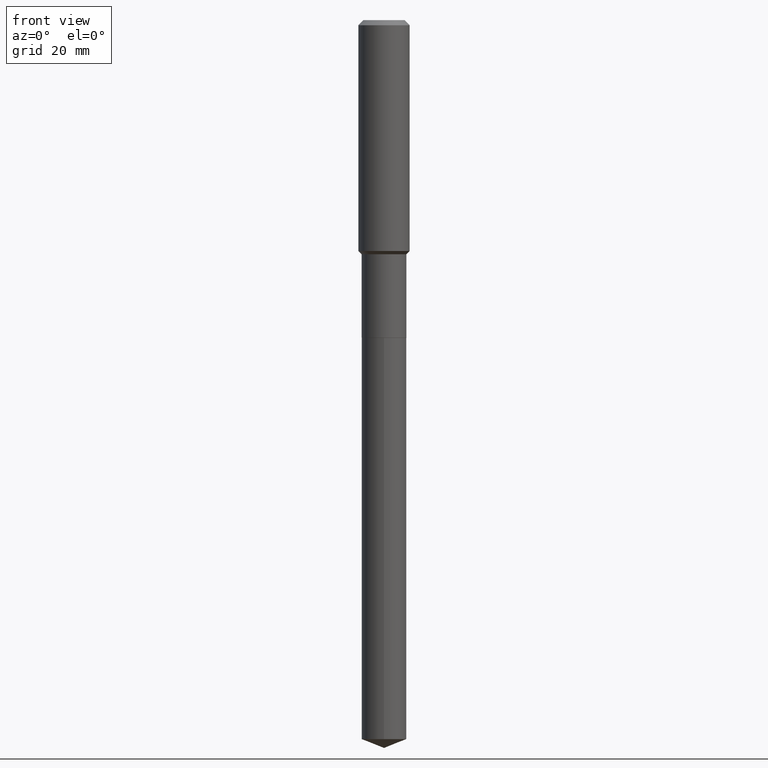
[diagram: clean part render]
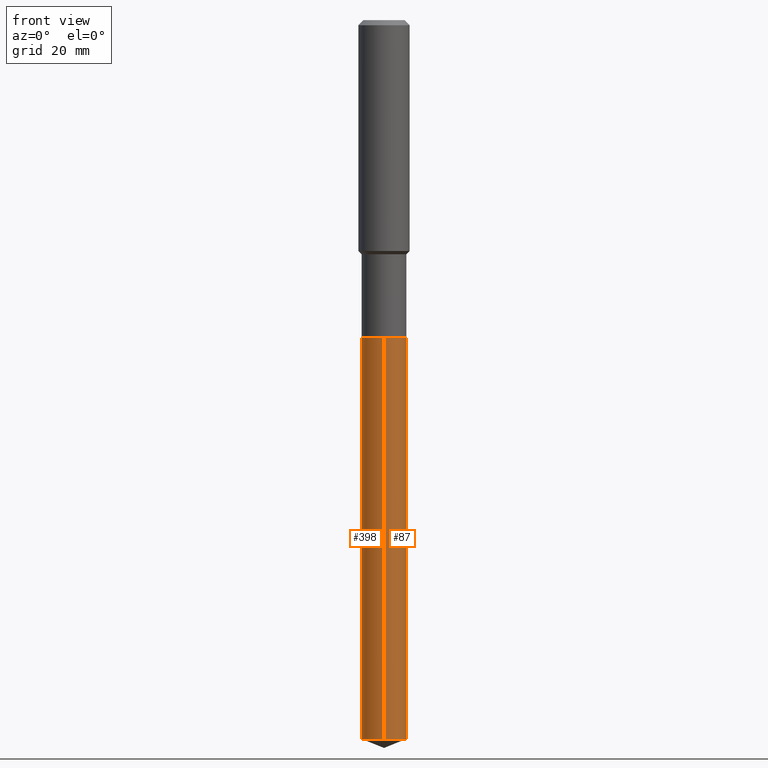
[diagram: same view with one multi-face feature highlighted, each face labeled with its STEP entity id]
A machine part, front view. The highlighted faces form ONE feature: a constant-radius fillet chain: 2 tangent blend faces with common blend radius 4.3663 mm. The faces share edges in the B-rep.
Their STEP definitions:
[1] entity #87 (Cylinder):
#7 = AXIS2_PLACEMENT_3D ( 'NONE', #361, #391, #206 ) ;
#12 = VERTEX_POINT ( 'NONE', #116 ) ;
#21 = LINE ( 'NONE', #457, #188 ) ;
#23 = DIRECTION ( 'NONE',  ( -2.445456552962842404E-29, 3.491498886154880768E-15, 1.000000000000000000 ) ) ;
#28 = CIRCLE ( 'NONE', #338, 0.1718999999999999695 ) ;
#36 = VERTEX_POINT ( 'NONE', #170 ) ;
#45 = CARTESIAN_POINT ( 'NONE',  ( 1.221422962771747687E-15, 0.1718999999999807626, -5.522786789241792782 ) ) ;
#87 = ADVANCED_FACE ( 'NONE', ( #282 ), #392, .T. ) ;
#99 = AXIS2_PLACEMENT_3D ( 'NONE', #363, #23, #468 ) ;
#103 = CARTESIAN_POINT ( 'NONE',  ( -1.200371284294134346E-15, -0.1719000000000193429, -5.522786789241790117 ) ) ;
#113 = EDGE_CURVE ( 'NONE', #187, #12, #21, .T. ) ;
#116 = CARTESIAN_POINT ( 'NONE',  ( 1.221422962771747292E-15, 0.1718999999999914208, -2.440899999999999626 ) ) ;
#123 = DIRECTION ( 'NONE',  ( -6.982962677686266711E-15, -1.000000000000000000, 3.178415350394722068E-15 ) ) ;
#129 = DIRECTION ( 'NONE',  ( -2.445456552962842404E-29, 3.491498886154880374E-15, 1.000000000000000000 ) ) ;
#138 = CARTESIAN_POINT ( 'NONE',  ( 5.969144809017297917E-29, -8.522356799982231388E-15, -2.440899999999999181 ) ) ;
#144 = DIRECTION ( 'NONE',  ( -2.445456552962842404E-29, 3.491498886154880374E-15, 1.000000000000000000 ) ) ;
#147 = EDGE_CURVE ( 'NONE', #36, #12, #28, .T. ) ;
#170 = CARTESIAN_POINT ( 'NONE',  ( -1.200371284294209288E-15, -0.1719000000000085182, -2.440899999999998737 ) ) ;
#179 = EDGE_CURVE ( 'NONE', #448, #187, #313, .T. ) ;
#182 = CARTESIAN_POINT ( 'NONE',  ( -1.200371284294209288E-15, -0.1719000000000085182, -2.440899999999998737 ) ) ;
#183 = EDGE_LOOP ( 'NONE', ( #344, #408, #255, #234 ) ) ;
#187 = VERTEX_POINT ( 'NONE', #45 ) ;
#188 = VECTOR ( 'NONE', #129, 39.37007874015748143 ) ;
#206 = DIRECTION ( 'NONE',  ( -6.982962677686266711E-15, -1.000000000000000000, 3.178415350394722068E-15 ) ) ;
#218 = LINE ( 'NONE', #182, #265 ) ;
#234 = ORIENTED_EDGE ( 'NONE', *, *, #440, .F. ) ;
#255 = ORIENTED_EDGE ( 'NONE', *, *, #147, .F. ) ;
#265 = VECTOR ( 'NONE', #144, 39.37007874015748143 ) ;
#282 = FACE_OUTER_BOUND ( 'NONE', #183, .T. ) ;
#313 = CIRCLE ( 'NONE', #99, 0.1718999999999999695 ) ;
#315 = DIRECTION ( 'NONE',  ( -2.445456552962842404E-29, 3.491498886154880768E-15, 1.000000000000000000 ) ) ;
#338 = AXIS2_PLACEMENT_3D ( 'NONE', #138, #315, #123 ) ;
#344 = ORIENTED_EDGE ( 'NONE', *, *, #179, .T. ) ;
#361 = CARTESIAN_POINT ( 'NONE',  ( 5.969144809017297917E-29, -8.522356799982231388E-15, -2.440899999999999181 ) ) ;
#363 = CARTESIAN_POINT ( 'NONE',  ( 1.350576505325825204E-28, -1.928276109187539136E-14, -5.522786789241791006 ) ) ;
#391 = DIRECTION ( 'NONE',  ( -2.445456552962842404E-29, 3.491498886154880768E-15, 1.000000000000000000 ) ) ;
#392 = CYLINDRICAL_SURFACE ( 'NONE', #7, 0.1718999999999999695 ) ;
#408 = ORIENTED_EDGE ( 'NONE', *, *, #113, .T. ) ;
#440 = EDGE_CURVE ( 'NONE', #448, #36, #218, .T. ) ;
#448 = VERTEX_POINT ( 'NONE', #103 ) ;
#457 = CARTESIAN_POINT ( 'NONE',  ( 1.221422962771671562E-15, 0.1718999999999914485, -2.440899999999999626 ) ) ;
#468 = DIRECTION ( 'NONE',  ( -6.982962677686266711E-15, -1.000000000000000000, 6.356830700789444137E-15 ) ) ;
[2] entity #398 (Cylinder):
#12 = VERTEX_POINT ( 'NONE', #116 ) ;
#13 = EDGE_CURVE ( 'NONE', #12, #36, #321, .T. ) ;
#21 = LINE ( 'NONE', #457, #188 ) ;
#30 = ORIENTED_EDGE ( 'NONE', *, *, #440, .T. ) ;
#34 = ORIENTED_EDGE ( 'NONE', *, *, #113, .F. ) ;
#36 = VERTEX_POINT ( 'NONE', #170 ) ;
#39 = DIRECTION ( 'NONE',  ( -6.982962677686266711E-15, -1.000000000000000000, 3.178415350394722068E-15 ) ) ;
#45 = CARTESIAN_POINT ( 'NONE',  ( 1.221422962771747687E-15, 0.1718999999999807626, -5.522786789241792782 ) ) ;
#49 = EDGE_CURVE ( 'NONE', #187, #448, #305, .T. ) ;
#79 = FACE_OUTER_BOUND ( 'NONE', #270, .T. ) ;
#103 = CARTESIAN_POINT ( 'NONE',  ( -1.200371284294134346E-15, -0.1719000000000193429, -5.522786789241790117 ) ) ;
#113 = EDGE_CURVE ( 'NONE', #187, #12, #21, .T. ) ;
#116 = CARTESIAN_POINT ( 'NONE',  ( 1.221422962771747292E-15, 0.1718999999999914208, -2.440899999999999626 ) ) ;
#129 = DIRECTION ( 'NONE',  ( -2.445456552962842404E-29, 3.491498886154880374E-15, 1.000000000000000000 ) ) ;
#144 = DIRECTION ( 'NONE',  ( -2.445456552962842404E-29, 3.491498886154880374E-15, 1.000000000000000000 ) ) ;
#169 = DIRECTION ( 'NONE',  ( -6.982962677686266711E-15, -1.000000000000000000, 3.178415350394722068E-15 ) ) ;
#170 = CARTESIAN_POINT ( 'NONE',  ( -1.200371284294209288E-15, -0.1719000000000085182, -2.440899999999998737 ) ) ;
#182 = CARTESIAN_POINT ( 'NONE',  ( -1.200371284294209288E-15, -0.1719000000000085182, -2.440899999999998737 ) ) ;
#187 = VERTEX_POINT ( 'NONE', #45 ) ;
#188 = VECTOR ( 'NONE', #129, 39.37007874015748143 ) ;
#203 = CARTESIAN_POINT ( 'NONE',  ( 1.350576505325825204E-28, -1.928276109187539136E-14, -5.522786789241791006 ) ) ;
#218 = LINE ( 'NONE', #182, #265 ) ;
#265 = VECTOR ( 'NONE', #144, 39.37007874015748143 ) ;
#270 = EDGE_LOOP ( 'NONE', ( #34, #395, #30, #415 ) ) ;
#304 = CARTESIAN_POINT ( 'NONE',  ( 5.969144809017297917E-29, -8.522356799982231388E-15, -2.440899999999999181 ) ) ;
#305 = CIRCLE ( 'NONE', #485, 0.1718999999999999695 ) ;
#319 = DIRECTION ( 'NONE',  ( -6.982962677686266711E-15, -1.000000000000000000, 6.356830700789444137E-15 ) ) ;
#321 = CIRCLE ( 'NONE', #421, 0.1718999999999999695 ) ;
#340 = DIRECTION ( 'NONE',  ( -2.445456552962842404E-29, 3.491498886154880768E-15, 1.000000000000000000 ) ) ;
#348 = DIRECTION ( 'NONE',  ( -2.445456552962842404E-29, 3.491498886154880768E-15, 1.000000000000000000 ) ) ;
#350 = DIRECTION ( 'NONE',  ( -2.445456552962842404E-29, 3.491498886154880768E-15, 1.000000000000000000 ) ) ;
#395 = ORIENTED_EDGE ( 'NONE', *, *, #49, .T. ) ;
#398 = ADVANCED_FACE ( 'NONE', ( #79 ), #444, .T. ) ;
#415 = ORIENTED_EDGE ( 'NONE', *, *, #13, .F. ) ;
#418 = CARTESIAN_POINT ( 'NONE',  ( 5.969144809017297917E-29, -8.522356799982231388E-15, -2.440899999999999181 ) ) ;
#421 = AXIS2_PLACEMENT_3D ( 'NONE', #418, #348, #169 ) ;
#440 = EDGE_CURVE ( 'NONE', #448, #36, #218, .T. ) ;
#444 = CYLINDRICAL_SURFACE ( 'NONE', #480, 0.1718999999999999695 ) ;
#448 = VERTEX_POINT ( 'NONE', #103 ) ;
#457 = CARTESIAN_POINT ( 'NONE',  ( 1.221422962771671562E-15, 0.1718999999999914485, -2.440899999999999626 ) ) ;
#480 = AXIS2_PLACEMENT_3D ( 'NONE', #304, #340, #39 ) ;
#485 = AXIS2_PLACEMENT_3D ( 'NONE', #203, #350, #319 ) ;